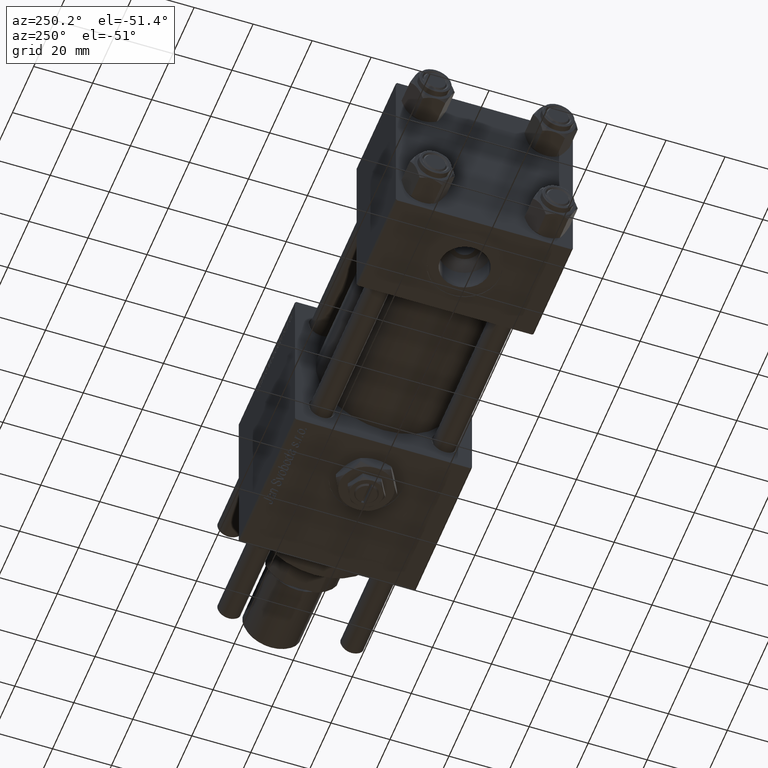
[diagram: clean part render]
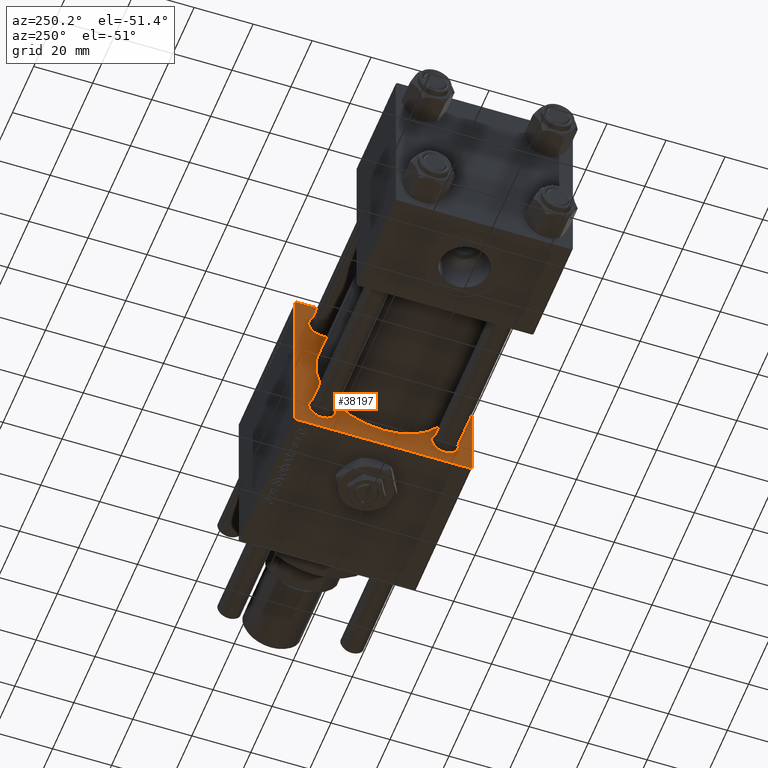
[diagram: same view with one face highlighted and labeled with its STEP entity id]
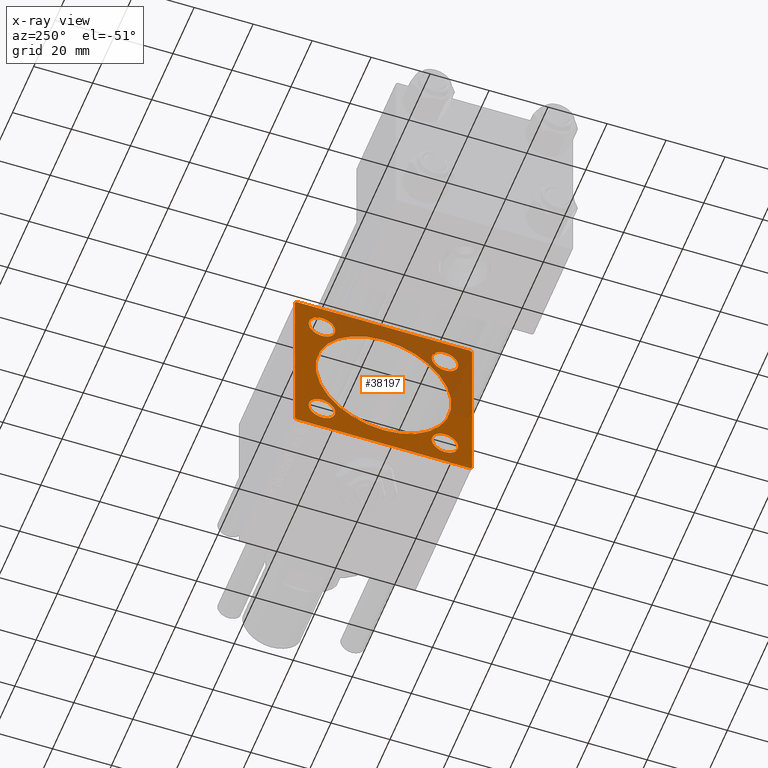
[diagram: x-ray of the same camera — body ghosted, the highlighted face saturated]
A machine part, auxiliary view. The second image highlights one B-rep face of the part: STEP entity #38197.
The next image is the same camera in x-ray: the body ghosted, the highlighted face saturated — about 36% of this face is hidden behind the body in this view.
In plain terms, the highlighted planar face has unit normal (-1, 0, 0).
Its self-contained STEP definition (entity closure, byte-faithful):
#68 = AXIS2_PLACEMENT_3D ( 'NONE', #8167, #3980, #17152 ) ;
#214 = VERTEX_POINT ( 'NONE', #44559 ) ;
#387 = DIRECTION ( 'NONE',  ( -1.000000000000000000, 0.000000000000000000, -0.000000000000000000 ) ) ;
#496 = CARTESIAN_POINT ( 'NONE',  ( 95.00000000000000000, -29.50000000000000000, 29.99999999999999289 ) ) ;
#1866 = CARTESIAN_POINT ( 'NONE',  ( 95.00000000000000000, 20.84999999999999787, -20.85000000000000142 ) ) ;
#2328 = DIRECTION ( 'NONE',  ( 0.000000000000000000, -0.7071067811865474617, 0.7071067811865474617 ) ) ;
#2414 = CARTESIAN_POINT ( 'NONE',  ( 95.00000000000000000, -29.50000000000000000, -30.00000000000000000 ) ) ;
#2946 = LINE ( 'NONE', #16147, #52279 ) ;
#3447 = DIRECTION ( 'NONE',  ( -0.000000000000000000, 0.7071067811865474617, 0.7071067811865474617 ) ) ;
#3494 = DIRECTION ( 'NONE',  ( 0.000000000000000000, 0.000000000000000000, -1.000000000000000000 ) ) ;
#3531 = CIRCLE ( 'NONE', #26524, 4.500000000000003553 ) ;
#3745 = CARTESIAN_POINT ( 'NONE',  ( 95.00000000000000000, -29.74999999999999645, -29.74999999999999645 ) ) ;
#3980 = DIRECTION ( 'NONE',  ( 1.000000000000000000, 0.000000000000000000, 0.000000000000000000 ) ) ;
#4000 = FACE_BOUND ( 'NONE', #16808, .T. ) ;
#4139 = DIRECTION ( 'NONE',  ( 1.000000000000000000, -0.000000000000000000, 0.000000000000000000 ) ) ;
#4395 = VERTEX_POINT ( 'NONE', #59209 ) ;
#5030 = ORIENTED_EDGE ( 'NONE', *, *, #48709, .F. ) ;
#6304 = DIRECTION ( 'NONE',  ( 0.000000000000000000, 0.000000000000000000, 1.000000000000000000 ) ) ;
#7939 = VERTEX_POINT ( 'NONE', #44455 ) ;
#8161 = DIRECTION ( 'NONE',  ( 1.000000000000000000, -0.000000000000000000, 0.000000000000000000 ) ) ;
#8167 = CARTESIAN_POINT ( 'NONE',  ( 95.00000000000000000, -2.602085213965210642E-15, 0.000000000000000000 ) ) ;
#8767 = CARTESIAN_POINT ( 'NONE',  ( 95.00000000000000000, -20.84999999999999076, -16.35000000000000142 ) ) ;
#9387 = FACE_OUTER_BOUND ( 'NONE', #9558, .T. ) ;
#9439 = EDGE_LOOP ( 'NONE', ( #49168, #54859 ) ) ;
#9558 = EDGE_LOOP ( 'NONE', ( #11309, #18775, #55744, #42886, #5030, #44953, #47607, #21642 ) ) ;
#9930 = VERTEX_POINT ( 'NONE', #55640 ) ;
#10891 = EDGE_CURVE ( 'NONE', #34870, #12989, #37688, .T. ) ;
#10911 = AXIS2_PLACEMENT_3D ( 'NONE', #31506, #50703, #54906 ) ;
#11177 = AXIS2_PLACEMENT_3D ( 'NONE', #1866, #15657, #29171 ) ;
#11309 = ORIENTED_EDGE ( 'NONE', *, *, #19957, .T. ) ;
#11396 = DIRECTION ( 'NONE',  ( 0.000000000000000000, 0.000000000000000000, 1.000000000000000000 ) ) ;
#12100 = EDGE_CURVE ( 'NONE', #42188, #25556, #48247, .T. ) ;
#12989 = VERTEX_POINT ( 'NONE', #13110 ) ;
#13110 = CARTESIAN_POINT ( 'NONE',  ( 95.00000000000000000, 30.00000000000000000, 29.50000000000000000 ) ) ;
#13582 = CARTESIAN_POINT ( 'NONE',  ( 95.00000000000000000, 0.000000000000000000, 0.000000000000000000 ) ) ;
#14028 = EDGE_CURVE ( 'NONE', #25098, #58004, #21891, .T. ) ;
#14601 = ORIENTED_EDGE ( 'NONE', *, *, #50082, .T. ) ;
#14987 = VECTOR ( 'NONE', #23706, 1000.000000000000000 ) ;
#15606 = VERTEX_POINT ( 'NONE', #47956 ) ;
#15657 = DIRECTION ( 'NONE',  ( 1.000000000000000000, -0.000000000000000000, 0.000000000000000000 ) ) ;
#16101 = ORIENTED_EDGE ( 'NONE', *, *, #46736, .T. ) ;
#16147 = CARTESIAN_POINT ( 'NONE',  ( 95.00000000000000000, 29.74999999999999645, -29.74999999999999645 ) ) ;
#16808 = EDGE_LOOP ( 'NONE', ( #53627, #36270 ) ) ;
#16969 = CARTESIAN_POINT ( 'NONE',  ( 95.00000000000000000, -2.602085213965210642E-15, 23.00000000000000000 ) ) ;
#17086 = VERTEX_POINT ( 'NONE', #38218 ) ;
#17152 = DIRECTION ( 'NONE',  ( 0.000000000000000000, 0.000000000000000000, -1.000000000000000000 ) ) ;
#17767 = PLANE ( 'NONE',  #36777 ) ;
#18775 = ORIENTED_EDGE ( 'NONE', *, *, #12100, .T. ) ;
#18957 = VECTOR ( 'NONE', #52082, 1000.000000000000114 ) ;
#19192 = ORIENTED_EDGE ( 'NONE', *, *, #38656, .T. ) ;
#19284 = AXIS2_PLACEMENT_3D ( 'NONE', #54555, #4139, #40729 ) ;
#19957 = EDGE_CURVE ( 'NONE', #7939, #42188, #44128, .T. ) ;
#20211 = CIRCLE ( 'NONE', #19284, 4.500000000000003553 ) ;
#20307 = EDGE_CURVE ( 'NONE', #15606, #56003, #20211, .T. ) ;
#20508 = CIRCLE ( 'NONE', #56943, 4.500000000000003553 ) ;
#21188 = LINE ( 'NONE', #57824, #54267 ) ;
#21602 = VERTEX_POINT ( 'NONE', #28344 ) ;
#21642 = ORIENTED_EDGE ( 'NONE', *, *, #43217, .T. ) ;
#21703 = VECTOR ( 'NONE', #3494, 1000.000000000000000 ) ;
#21891 = CIRCLE ( 'NONE', #42063, 23.00000000000000000 ) ;
#22670 = EDGE_CURVE ( 'NONE', #58004, #25098, #51946, .T. ) ;
#22726 = CARTESIAN_POINT ( 'NONE',  ( 95.00000000000000000, -20.84999999999999076, -20.85000000000000497 ) ) ;
#23706 = DIRECTION ( 'NONE',  ( 0.000000000000000000, -1.000000000000000000, -1.156482317317871478E-16 ) ) ;
#25098 = VERTEX_POINT ( 'NONE', #26447 ) ;
#25556 = VERTEX_POINT ( 'NONE', #38923 ) ;
#25779 = CARTESIAN_POINT ( 'NONE',  ( 95.00000000000000000, 20.84999999999999787, 16.34999999999999787 ) ) ;
#26287 = LINE ( 'NONE', #44605, #21703 ) ;
#26447 = CARTESIAN_POINT ( 'NONE',  ( 95.00000000000000000, 2.146024240737012665E-16, -23.00000000000000000 ) ) ;
#26524 = AXIS2_PLACEMENT_3D ( 'NONE', #49282, #8161, #51081 ) ;
#27054 = CARTESIAN_POINT ( 'NONE',  ( 95.00000000000000000, 29.50000000000000000, 30.00000000000000000 ) ) ;
#27160 = CARTESIAN_POINT ( 'NONE',  ( 95.00000000000000000, -2.602085213965210642E-15, 0.000000000000000000 ) ) ;
#27992 = DIRECTION ( 'NONE',  ( -0.000000000000000000, 0.000000000000000000, 1.000000000000000000 ) ) ;
#28219 = CARTESIAN_POINT ( 'NONE',  ( 95.00000000000000000, 30.00000000000000000, 30.00000000000000000 ) ) ;
#28344 = CARTESIAN_POINT ( 'NONE',  ( 95.00000000000000000, -20.84999999999999076, 16.35000000000000142 ) ) ;
#28534 = DIRECTION ( 'NONE',  ( 1.000000000000000000, -0.000000000000000000, 0.000000000000000000 ) ) ;
#29122 = CARTESIAN_POINT ( 'NONE',  ( 95.00000000000000000, 20.84999999999999787, 20.85000000000000142 ) ) ;
#29171 = DIRECTION ( 'NONE',  ( 0.000000000000000000, 0.000000000000000000, 1.000000000000000000 ) ) ;
#30514 = DIRECTION ( 'NONE',  ( 0.000000000000000000, 0.000000000000000000, -1.000000000000000000 ) ) ;
#31506 = CARTESIAN_POINT ( 'NONE',  ( 95.00000000000000000, -20.84999999999999076, 20.85000000000000497 ) ) ;
#32324 = CIRCLE ( 'NONE', #11177, 4.500000000000003553 ) ;
#33009 = EDGE_CURVE ( 'NONE', #21602, #47454, #36809, .T. ) ;
#33241 = DIRECTION ( 'NONE',  ( 0.000000000000000000, 0.000000000000000000, 1.000000000000000000 ) ) ;
#34457 = DIRECTION ( 'NONE',  ( -0.000000000000000000, -0.7071067811865474617, -0.7071067811865474617 ) ) ;
#34679 = EDGE_CURVE ( 'NONE', #214, #25556, #21188, .T. ) ;
#34870 = VERTEX_POINT ( 'NONE', #27054 ) ;
#35539 = VERTEX_POINT ( 'NONE', #496 ) ;
#36270 = ORIENTED_EDGE ( 'NONE', *, *, #14028, .T. ) ;
#36391 = FACE_BOUND ( 'NONE', #52251, .T. ) ;
#36777 = AXIS2_PLACEMENT_3D ( 'NONE', #13582, #387, #27992 ) ;
#36809 = CIRCLE ( 'NONE', #10911, 4.500000000000003553 ) ;
#37397 = CARTESIAN_POINT ( 'NONE',  ( 95.00000000000000000, 29.74999999999999645, 29.74999999999999645 ) ) ;
#37454 = DIRECTION ( 'NONE',  ( 1.000000000000000000, -0.000000000000000000, 0.000000000000000000 ) ) ;
#37688 = LINE ( 'NONE', #37397, #18957 ) ;
#38197 = ADVANCED_FACE ( 'NONE', ( #51100, #50508, #36391, #45413, #4000, #9387 ), #17767, .T. ) ;
#38218 = CARTESIAN_POINT ( 'NONE',  ( 95.00000000000000000, -20.84999999999999076, -25.35000000000000853 ) ) ;
#38656 = EDGE_CURVE ( 'NONE', #17086, #50776, #20508, .T. ) ;
#38923 = CARTESIAN_POINT ( 'NONE',  ( 95.00000000000000000, -30.00000000000000000, -29.49999999999998579 ) ) ;
#39215 = EDGE_CURVE ( 'NONE', #9930, #55130, #46425, .T. ) ;
#39796 = ORIENTED_EDGE ( 'NONE', *, *, #39215, .T. ) ;
#40449 = DIRECTION ( 'NONE',  ( 0.000000000000000000, 0.000000000000000000, 1.000000000000000000 ) ) ;
#40729 = DIRECTION ( 'NONE',  ( 0.000000000000000000, 0.000000000000000000, 1.000000000000000000 ) ) ;
#40916 = CIRCLE ( 'NONE', #44730, 4.500000000000003553 ) ;
#40958 = DIRECTION ( 'NONE',  ( 0.000000000000000000, 0.000000000000000000, -1.000000000000000000 ) ) ;
#41037 = ORIENTED_EDGE ( 'NONE', *, *, #50820, .T. ) ;
#41308 = CARTESIAN_POINT ( 'NONE',  ( 95.00000000000000000, 20.84999999999999787, -16.34999999999999787 ) ) ;
#41355 = DIRECTION ( 'NONE',  ( 1.000000000000000000, -0.000000000000000000, 0.000000000000000000 ) ) ;
#42063 = AXIS2_PLACEMENT_3D ( 'NONE', #27160, #45473, #40958 ) ;
#42188 = VERTEX_POINT ( 'NONE', #2414 ) ;
#42886 = ORIENTED_EDGE ( 'NONE', *, *, #53645, .T. ) ;
#42942 = CARTESIAN_POINT ( 'NONE',  ( 95.00000000000000000, 30.00000000000000000, -29.99999999999999289 ) ) ;
#43217 = EDGE_CURVE ( 'NONE', #4395, #7939, #2946, .T. ) ;
#43537 = AXIS2_PLACEMENT_3D ( 'NONE', #47133, #28534, #6304 ) ;
#43829 = DIRECTION ( 'NONE',  ( 0.000000000000000000, -1.000000000000000000, -1.156482317317871478E-16 ) ) ;
#43933 = VECTOR ( 'NONE', #2328, 1000.000000000000114 ) ;
#44128 = LINE ( 'NONE', #42942, #45182 ) ;
#44455 = CARTESIAN_POINT ( 'NONE',  ( 95.00000000000000000, 29.50000000000000000, -29.99999999999999289 ) ) ;
#44559 = CARTESIAN_POINT ( 'NONE',  ( 95.00000000000000000, -30.00000000000000000, 29.49999999999999289 ) ) ;
#44605 = CARTESIAN_POINT ( 'NONE',  ( 95.00000000000000000, 30.00000000000000000, 30.00000000000000000 ) ) ;
#44730 = AXIS2_PLACEMENT_3D ( 'NONE', #29122, #56737, #11396 ) ;
#44953 = ORIENTED_EDGE ( 'NONE', *, *, #10891, .T. ) ;
#45182 = VECTOR ( 'NONE', #43829, 1000.000000000000000 ) ;
#45413 = FACE_BOUND ( 'NONE', #52743, .T. ) ;
#45473 = DIRECTION ( 'NONE',  ( 1.000000000000000000, 0.000000000000000000, 0.000000000000000000 ) ) ;
#46313 = EDGE_CURVE ( 'NONE', #12989, #4395, #26287, .T. ) ;
#46425 = CIRCLE ( 'NONE', #43537, 4.500000000000003553 ) ;
#46736 = EDGE_CURVE ( 'NONE', #56003, #15606, #32324, .T. ) ;
#46882 = CARTESIAN_POINT ( 'NONE',  ( 95.00000000000000000, -20.84999999999999076, 25.35000000000000853 ) ) ;
#46896 = EDGE_LOOP ( 'NONE', ( #39796, #14601 ) ) ;
#47133 = CARTESIAN_POINT ( 'NONE',  ( 95.00000000000000000, 20.84999999999999787, 20.85000000000000142 ) ) ;
#47454 = VERTEX_POINT ( 'NONE', #46882 ) ;
#47607 = ORIENTED_EDGE ( 'NONE', *, *, #46313, .T. ) ;
#47956 = CARTESIAN_POINT ( 'NONE',  ( 95.00000000000000000, 20.84999999999999787, -25.35000000000000497 ) ) ;
#48181 = CARTESIAN_POINT ( 'NONE',  ( 95.00000000000000000, -29.74999999999999645, 29.74999999999999645 ) ) ;
#48247 = LINE ( 'NONE', #3745, #43933 ) ;
#48461 = ORIENTED_EDGE ( 'NONE', *, *, #20307, .T. ) ;
#48709 = EDGE_CURVE ( 'NONE', #34870, #35539, #51039, .T. ) ;
#48764 = LINE ( 'NONE', #48181, #54423 ) ;
#49168 = ORIENTED_EDGE ( 'NONE', *, *, #49608, .T. ) ;
#49282 = CARTESIAN_POINT ( 'NONE',  ( 95.00000000000000000, -20.84999999999999076, -20.85000000000000497 ) ) ;
#49608 = EDGE_CURVE ( 'NONE', #47454, #21602, #49630, .T. ) ;
#49630 = CIRCLE ( 'NONE', #57284, 4.500000000000003553 ) ;
#50082 = EDGE_CURVE ( 'NONE', #55130, #9930, #40916, .T. ) ;
#50508 = FACE_BOUND ( 'NONE', #46896, .T. ) ;
#50703 = DIRECTION ( 'NONE',  ( 1.000000000000000000, -0.000000000000000000, 0.000000000000000000 ) ) ;
#50776 = VERTEX_POINT ( 'NONE', #8767 ) ;
#50820 = EDGE_CURVE ( 'NONE', #50776, #17086, #3531, .T. ) ;
#51039 = LINE ( 'NONE', #28219, #14987 ) ;
#51081 = DIRECTION ( 'NONE',  ( 0.000000000000000000, 0.000000000000000000, 1.000000000000000000 ) ) ;
#51100 = FACE_BOUND ( 'NONE', #9439, .T. ) ;
#51946 = CIRCLE ( 'NONE', #68, 23.00000000000000000 ) ;
#52082 = DIRECTION ( 'NONE',  ( 0.000000000000000000, 0.7071067811865474617, -0.7071067811865474617 ) ) ;
#52251 = EDGE_LOOP ( 'NONE', ( #16101, #48461 ) ) ;
#52279 = VECTOR ( 'NONE', #34457, 1000.000000000000114 ) ;
#52743 = EDGE_LOOP ( 'NONE', ( #41037, #19192 ) ) ;
#53627 = ORIENTED_EDGE ( 'NONE', *, *, #22670, .T. ) ;
#53645 = EDGE_CURVE ( 'NONE', #214, #35539, #48764, .T. ) ;
#54267 = VECTOR ( 'NONE', #30514, 1000.000000000000000 ) ;
#54423 = VECTOR ( 'NONE', #3447, 1000.000000000000114 ) ;
#54555 = CARTESIAN_POINT ( 'NONE',  ( 95.00000000000000000, 20.84999999999999787, -20.85000000000000142 ) ) ;
#54859 = ORIENTED_EDGE ( 'NONE', *, *, #33009, .T. ) ;
#54906 = DIRECTION ( 'NONE',  ( 0.000000000000000000, 0.000000000000000000, 1.000000000000000000 ) ) ;
#55130 = VERTEX_POINT ( 'NONE', #25779 ) ;
#55640 = CARTESIAN_POINT ( 'NONE',  ( 95.00000000000000000, 20.84999999999999787, 25.35000000000000497 ) ) ;
#55744 = ORIENTED_EDGE ( 'NONE', *, *, #34679, .F. ) ;
#56003 = VERTEX_POINT ( 'NONE', #41308 ) ;
#56060 = CARTESIAN_POINT ( 'NONE',  ( 95.00000000000000000, -20.84999999999999076, 20.85000000000000497 ) ) ;
#56737 = DIRECTION ( 'NONE',  ( 1.000000000000000000, -0.000000000000000000, 0.000000000000000000 ) ) ;
#56943 = AXIS2_PLACEMENT_3D ( 'NONE', #22726, #41355, #40449 ) ;
#57284 = AXIS2_PLACEMENT_3D ( 'NONE', #56060, #37454, #33241 ) ;
#57824 = CARTESIAN_POINT ( 'NONE',  ( 95.00000000000000000, -30.00000000000000000, 29.99999999999999289 ) ) ;
#58004 = VERTEX_POINT ( 'NONE', #16969 ) ;
#59209 = CARTESIAN_POINT ( 'NONE',  ( 95.00000000000000000, 30.00000000000000000, -29.49999999999997868 ) ) ;